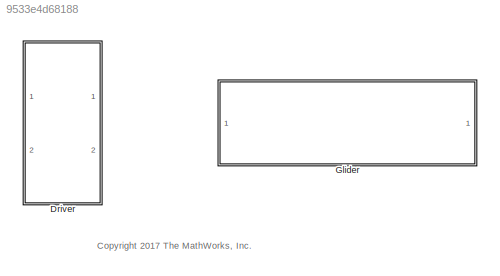
MODEL slx_9533e4d68188
KIND library
CONFIG AbsTol = auto
CONFIG EnableMultiTasking = off
CONFIG FixedStep = auto
CONFIG MaxStep = auto
CONFIG MinStep = auto
CONFIG RelTol = 1e-3
CONFIG SampleTimeConstraint = Unconstrained
CONFIG Solver = VariableStepAuto
CONFIG SolverName = VariableStepAuto
CONFIG StartTime = 0.0
CONFIG StopTime = 10.0
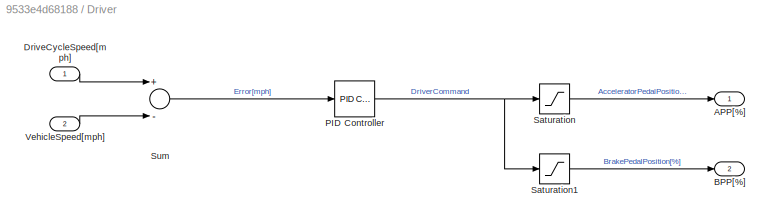
BLOCK [SubSystem] Driver
  Ports = [2, 2]
  RequestExecContextInheritance = off
  Variant = off
BLOCK [Outport] Driver/APP[%]
  IconDisplay = Port number
BLOCK [Outport] Driver/BPP[%]
  IconDisplay = Port number
  Port = 2
BLOCK [Inport] Driver/DriveCycleSpeed[mph]
  IconDisplay = Port number
BLOCK [Reference] Driver/PID Controller  REF=simulink/Continuous/PID Controller
  Ports = [1, 1]
  SourceBlock = simulink/Continuous/PID Controller
  SourceProductBaseCode = SL
  SourceProductName = Simulink
  SourceType = PID 1dof
BLOCK [Saturate] Driver/Saturation
  InputPortMap = u0
  LowerLimit = 0
  Ports = [1, 1]
  UpperLimit = 100
  ZeroCross = off
BLOCK [Saturate] Driver/Saturation1
  InputPortMap = u0
  LowerLimit = -100
  Ports = [1, 1]
  UpperLimit = 0
  ZeroCross = off
BLOCK [Sum] Driver/Sum
  InputSameDT = off
  Inputs = +-
  OutDataTypeStr = Inherit: Inherit via internal rule
  Ports = [2, 1]
  SaturateOnIntegerOverflow = off
BLOCK [Inport] Driver/VehicleSpeed[mph]
  IconDisplay = Port number
  Port = 2
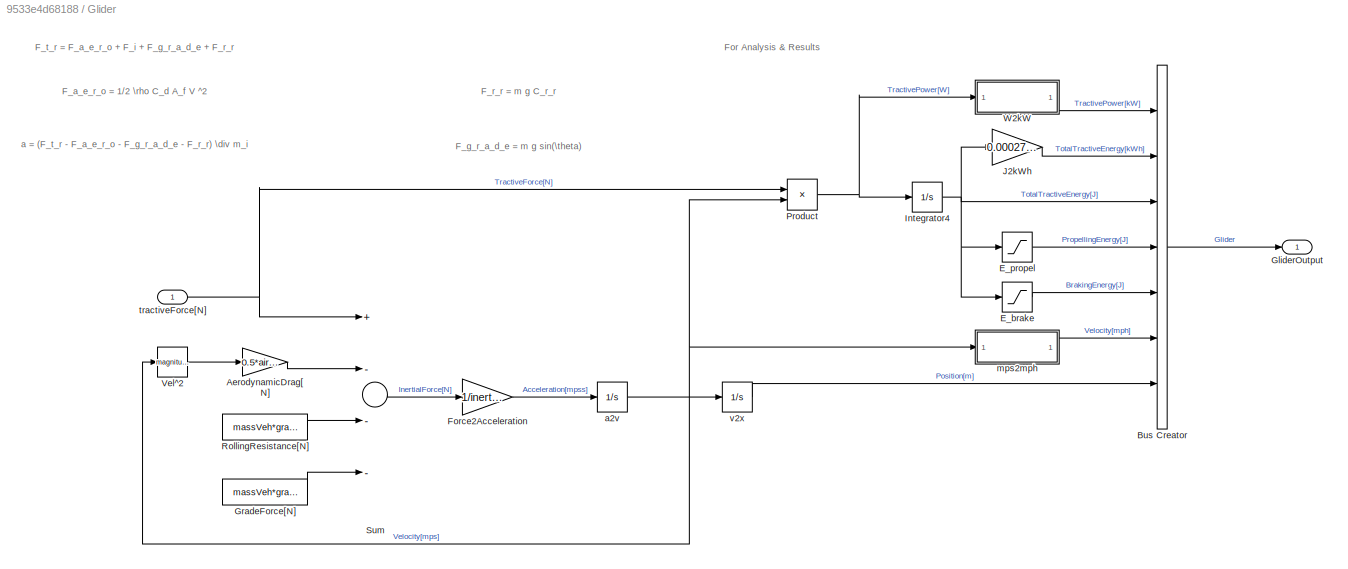
BLOCK [SubSystem] Glider
  Ports = [1, 1]
  RequestExecContextInheritance = off
  Variant = off
BLOCK [Gain] Glider/AerodynamicDrag[N]
  AttributesFormatString = %<Gain>
  Gain = 0.5*airDensity*aeroDragCoeff*frontArea
  OutDataTypeStr = Inherit: Inherit via internal rule
  ParamDataTypeStr = Inherit: Inherit via internal rule
  SaturateOnIntegerOverflow = off
BLOCK [BusCreator] Glider/Bus Creator
  DisplayOption = bar
  InheritFromInputs = on
  Inputs = 7
  Ports = [7, 1]
BLOCK [Saturate] Glider/E_brake
  InputPortMap = u0
  LowerLimit = -inf
  Ports = [1, 1]
  UpperLimit = 0
BLOCK [Saturate] Glider/E_propel
  InputPortMap = u0
  LowerLimit = 0
  Ports = [1, 1]
  UpperLimit = inf
BLOCK [Gain] Glider/Force2Acceleration
  AttributesFormatString = %<Gain>
  Gain = 1/inertialMassVeh
  OutDataTypeStr = Inherit: Inherit via internal rule
  ParamDataTypeStr = Inherit: Inherit via internal rule
  SaturateOnIntegerOverflow = off
BLOCK [Outport] Glider/GliderOutput
  IconDisplay = Port number
BLOCK [Constant] Glider/GradeForce[N]
  AttributesFormatString = %<Value>
  Value = massVeh*gravity*sin(inclinationAngle)
BLOCK [Integrator] Glider/Integrator4
  Ports = [1, 1]
BLOCK [Gain] Glider/J2kWh
  Gain = 0.000278/1000
  OutDataTypeStr = Inherit: Inherit via internal rule
  ParamDataTypeStr = Inherit: Inherit via internal rule
  SaturateOnIntegerOverflow = off
BLOCK [Product] Glider/Product
  InputSameDT = off
  OutDataTypeStr = Inherit: Inherit via internal rule
  Ports = [2, 1]
  RndMeth = Floor
  SaturateOnIntegerOverflow = off
BLOCK [Constant] Glider/RollingResistance[N]
  AttributesFormatString = %<Value>
  Value = massVeh*gravity*rollingResistCoeff
BLOCK [Sum] Glider/Sum
  InputSameDT = off
  Inputs = +---
  OutDataTypeStr = Inherit: Inherit via internal rule
  Ports = [4, 1]
  SaturateOnIntegerOverflow = off
BLOCK [Math] Glider/Vel^2
  Operator = magnitude^2
  Ports = [1, 1]
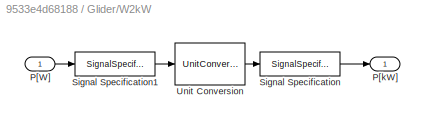
BLOCK [SubSystem] Glider/W2kW
  Ports = [1, 1]
  RequestExecContextInheritance = off
  Variant = off
BLOCK [Inport] Glider/W2kW/P[W]
  IconDisplay = Port number
BLOCK [Outport] Glider/W2kW/P[kW]
  IconDisplay = Port number
BLOCK [SignalSpecification] Glider/W2kW/Signal Specification
  Unit = kW
BLOCK [SignalSpecification] Glider/W2kW/Signal Specification1
  Unit = W
BLOCK [UnitConversion] Glider/W2kW/Unit Conversion
BLOCK [Integrator] Glider/a2v
  Ports = [1, 1]
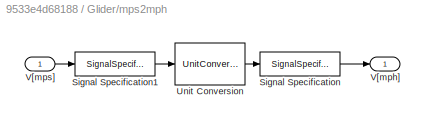
BLOCK [SubSystem] Glider/mps2mph
  Ports = [1, 1]
  RequestExecContextInheritance = off
  Variant = off
BLOCK [SignalSpecification] Glider/mps2mph/Signal Specification
  Unit = mph
BLOCK [SignalSpecification] Glider/mps2mph/Signal Specification1
  Unit = m/s
BLOCK [UnitConversion] Glider/mps2mph/Unit Conversion
BLOCK [Outport] Glider/mps2mph/V[mph]
  IconDisplay = Port number
BLOCK [Inport] Glider/mps2mph/V[mps]
  IconDisplay = Port number
BLOCK [Inport] Glider/tractiveForce[N]
  IconDisplay = Port number
BLOCK [Integrator] Glider/v2x
  Ports = [1, 1]
ANNOTATION (root): <copyright redacted>
ANNOTATION Glider: F_a_e_r_o = 1/2 \rho C_d A_f V ^2
ANNOTATION Glider: F_g_r_a_d_e = m g sin(\theta)
ANNOTATION Glider: F_r_r = m g C_r_r
ANNOTATION Glider: F_t_r = F_a_e_r_o + F_i + F_g_r_a_d_e + F_r_r
ANNOTATION Glider: For Analysis & Results
ANNOTATION Glider: a = (F_t_r - F_a_e_r_o - F_g_r_a_d_e - F_r_r) \div m_i
LINE Driver/DriveCycleSpeed[mph]:1 -> Driver/Sum:1
NET Driver/PID Controller:1 -> Driver/Saturation1:1, Driver/Saturation:1
LINE Driver/Saturation1:1 -> Driver/BPP[%]:1
LINE Driver/Saturation:1 -> Driver/APP[%]:1
LINE Driver/Sum:1 -> Driver/PID Controller:1
LINE Driver/VehicleSpeed[mph]:1 -> Driver/Sum:2
LINE Glider/AerodynamicDrag[N]:1 -> Glider/Sum:2
LINE Glider/Bus Creator:1 -> Glider/GliderOutput:1
LINE Glider/E_brake:1 -> Glider/Bus Creator:5
LINE Glider/E_propel:1 -> Glider/Bus Creator:4
LINE Glider/Force2Acceleration:1 -> Glider/a2v:1
LINE Glider/GradeForce[N]:1 -> Glider/Sum:4
NET Glider/Integrator4:1 -> Glider/Bus Creator:3, Glider/E_brake:1, Glider/E_propel:1, Glider/J2kWh:1
LINE Glider/J2kWh:1 -> Glider/Bus Creator:2
NET Glider/Product:1 -> Glider/Integrator4:1, Glider/W2kW:1
LINE Glider/RollingResistance[N]:1 -> Glider/Sum:3
LINE Glider/Sum:1 -> Glider/Force2Acceleration:1
LINE Glider/Vel^2:1 -> Glider/AerodynamicDrag[N]:1
LINE Glider/W2kW/P[W]:1 -> Glider/W2kW/Signal Specification1:1
LINE Glider/W2kW/Signal Specification1:1 -> Glider/W2kW/Unit Conversion:1
LINE Glider/W2kW/Signal Specification:1 -> Glider/W2kW/P[kW]:1
LINE Glider/W2kW/Unit Conversion:1 -> Glider/W2kW/Signal Specification:1
LINE Glider/W2kW:1 -> Glider/Bus Creator:1
NET Glider/a2v:1 -> Glider/Product:2, Glider/Vel^2:1, Glider/mps2mph:1, Glider/v2x:1
LINE Glider/mps2mph/Signal Specification1:1 -> Glider/mps2mph/Unit Conversion:1
LINE Glider/mps2mph/Signal Specification:1 -> Glider/mps2mph/V[mph]:1
LINE Glider/mps2mph/Unit Conversion:1 -> Glider/mps2mph/Signal Specification:1
LINE Glider/mps2mph/V[mps]:1 -> Glider/mps2mph/Signal Specification1:1
LINE Glider/mps2mph:1 -> Glider/Bus Creator:6
NET Glider/tractiveForce[N]:1 -> Glider/Product:1, Glider/Sum:1
LINE Glider/v2x:1 -> Glider/Bus Creator:7
note: NET lines group one-source signal fan-out (src -> all destinations, sorted); 1:1 wires keep LINE
